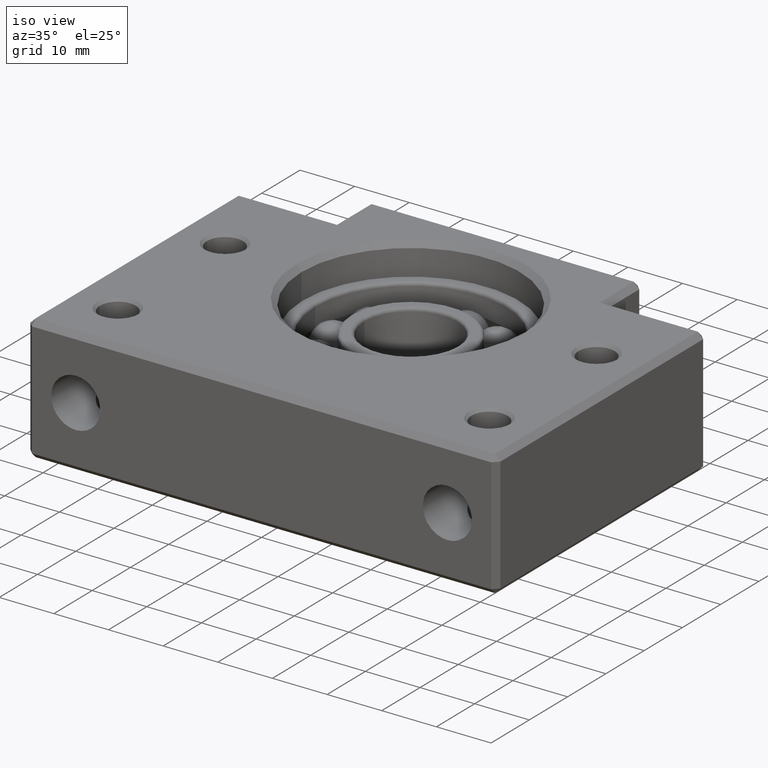
[diagram: clean part render]
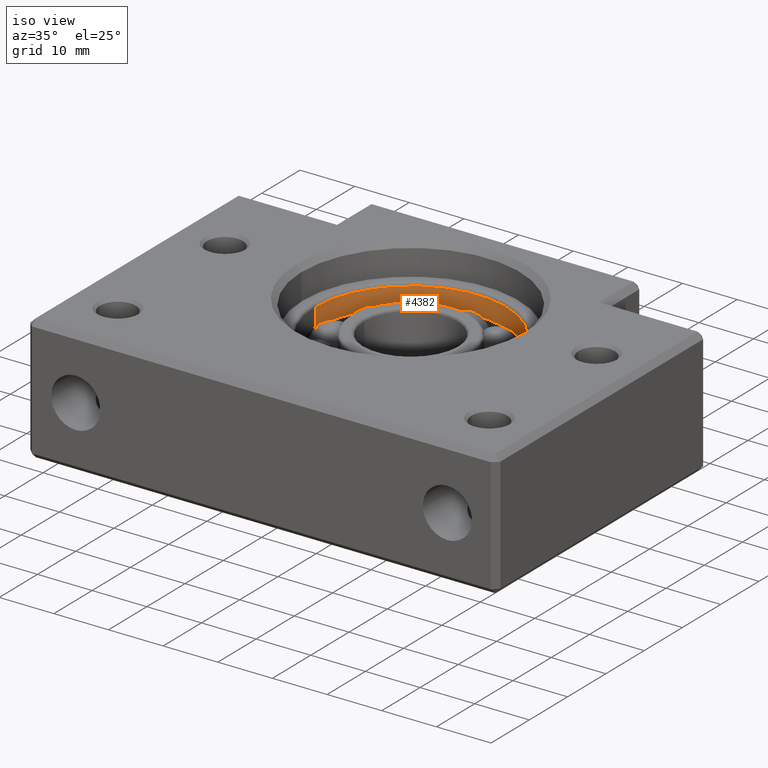
[diagram: same view with one face highlighted and labeled with its STEP entity id]
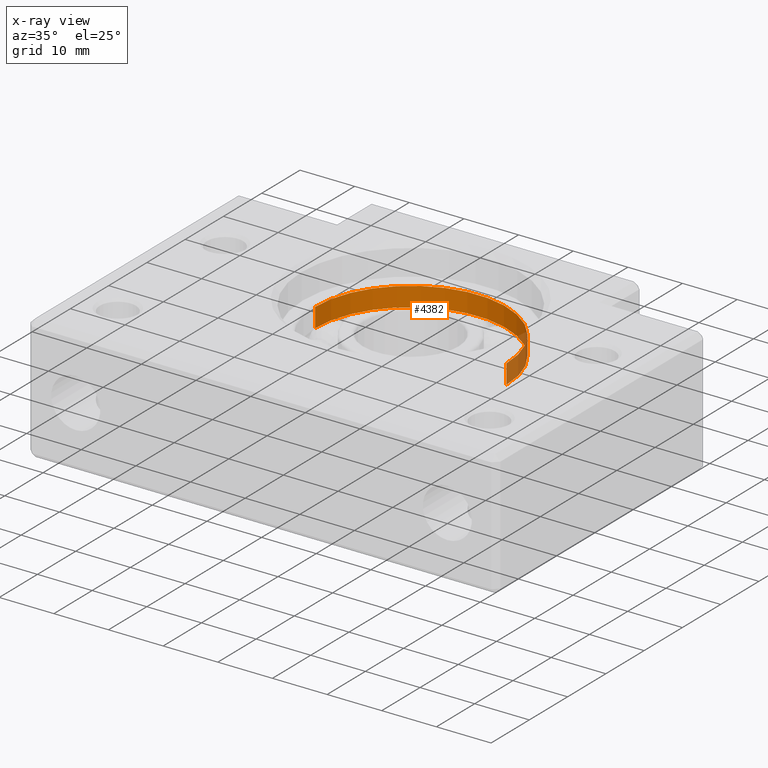
[diagram: x-ray of the same camera — body ghosted, the highlighted face saturated]
A machine part, iso view. The second image highlights one B-rep face of the part: STEP entity #4382.
The next image is the same camera in x-ray: the body ghosted, the highlighted face saturated — about 11% of this face is hidden behind the body in this view.
In plain terms, the highlighted cylindrical surface (partial cylindrical patch) has radius 17.5 mm, axis along (-0, -0, 1).
Its self-contained STEP definition (entity closure, byte-faithful):
#2659 = CARTESIAN_POINT ( 'NONE',  ( -17.49999999999998900, 39.00000000000000700, 5.400000000000000400 ) ) ;
#2700 = CARTESIAN_POINT ( 'NONE',  ( 17.50000000000001400, 39.00000000000000700, 5.400000000000000400 ) ) ;
#2701 = DIRECTION ( 'NONE',  ( 1.000000000000000000, 0.0000000000000000000, 0.0000000000000000000 ) ) ;
#2702 = DIRECTION ( 'NONE',  ( -0.0000000000000000000, -0.0000000000000000000, 1.000000000000000000 ) ) ;
#2703 = CARTESIAN_POINT ( 'NONE',  ( 1.255275776586078800E-014, 39.00000000000000700, 5.400000000000000400 ) ) ;
#2704 = AXIS2_PLACEMENT_3D ( 'NONE', #2703, #2702, #2701 ) ;
#2705 = CIRCLE ( 'NONE', #2704, 17.50000000000000000 ) ;
#2732 = DIRECTION ( 'NONE',  ( 1.000000000000000000, 0.0000000000000000000, 0.0000000000000000000 ) ) ;
#2733 = DIRECTION ( 'NONE',  ( -0.0000000000000000000, -0.0000000000000000000, 1.000000000000000000 ) ) ;
#2734 = CARTESIAN_POINT ( 'NONE',  ( 1.255275776586078800E-014, 39.00000000000000700, 8.839432060501899000 ) ) ;
#2735 = AXIS2_PLACEMENT_3D ( 'NONE', #2734, #2733, #2732 ) ;
#2736 = CYLINDRICAL_SURFACE ( 'NONE', #2735, 17.50000000000000000 ) ;
#2737 = FACE_OUTER_BOUND ( 'NONE', #4358, .T. ) ;
#2738 = DIRECTION ( 'NONE',  ( 1.000000000000000000, 0.0000000000000000000, 0.0000000000000000000 ) ) ;
#2739 = DIRECTION ( 'NONE',  ( -0.0000000000000000000, -0.0000000000000000000, 1.000000000000000000 ) ) ;
#2741 = CARTESIAN_POINT ( 'NONE',  ( 1.255275776586078800E-014, 39.00000000000000700, 1.870828693386970900 ) ) ;
#2742 = AXIS2_PLACEMENT_3D ( 'NONE', #2741, #2739, #2738 ) ;
#2747 = CIRCLE ( 'NONE', #2742, 17.50000000000000000 ) ;
#2763 = CARTESIAN_POINT ( 'NONE',  ( 17.50000000000001400, 39.00000000000000700, 1.870828693386970900 ) ) ;
#2765 = DIRECTION ( 'NONE',  ( -0.0000000000000000000, -0.0000000000000000000, 1.000000000000000000 ) ) ;
#2766 = VECTOR ( 'NONE', #2765, 1000.000000000000000 ) ;
#2767 = CARTESIAN_POINT ( 'NONE',  ( 17.50000000000001400, 39.00000000000000700, 8.839432060501899000 ) ) ;
#2768 = LINE ( 'NONE', #2767, #2766 ) ;
#2769 = DIRECTION ( 'NONE',  ( -0.0000000000000000000, -0.0000000000000000000, 1.000000000000000000 ) ) ;
#2770 = VECTOR ( 'NONE', #2769, 1000.000000000000000 ) ;
#2771 = CARTESIAN_POINT ( 'NONE',  ( -17.49999999999998900, 39.00000000000000700, 8.839432060501899000 ) ) ;
#2772 = LINE ( 'NONE', #2771, #2770 ) ;
#2812 = CARTESIAN_POINT ( 'NONE',  ( -17.49999999999998900, 39.00000000000000700, 1.870828693386970900 ) ) ;
#4346 = VERTEX_POINT ( 'NONE', #2659 ) ;
#4353 = ORIENTED_EDGE ( 'NONE', *, *, #4390, .F. ) ;
#4358 = EDGE_LOOP ( 'NONE', ( #4353, #4427, #4393, #4399 ) ) ;
#4359 = EDGE_CURVE ( 'NONE', #4361, #4346, #2705, .T. ) ;
#4361 = VERTEX_POINT ( 'NONE', #2700 ) ;
#4380 = EDGE_CURVE ( 'NONE', #4396, #4400, #2747, .T. ) ;
#4382 = ADVANCED_FACE ( 'NONE', ( #2737 ), #2736, .F. ) ;
#4390 = EDGE_CURVE ( 'NONE', #4400, #4346, #2772, .T. ) ;
#4391 = EDGE_CURVE ( 'NONE', #4396, #4361, #2768, .T. ) ;
#4393 = ORIENTED_EDGE ( 'NONE', *, *, #4391, .T. ) ;
#4396 = VERTEX_POINT ( 'NONE', #2763 ) ;
#4399 = ORIENTED_EDGE ( 'NONE', *, *, #4359, .T. ) ;
#4400 = VERTEX_POINT ( 'NONE', #2812 ) ;
#4427 = ORIENTED_EDGE ( 'NONE', *, *, #4380, .F. ) ;